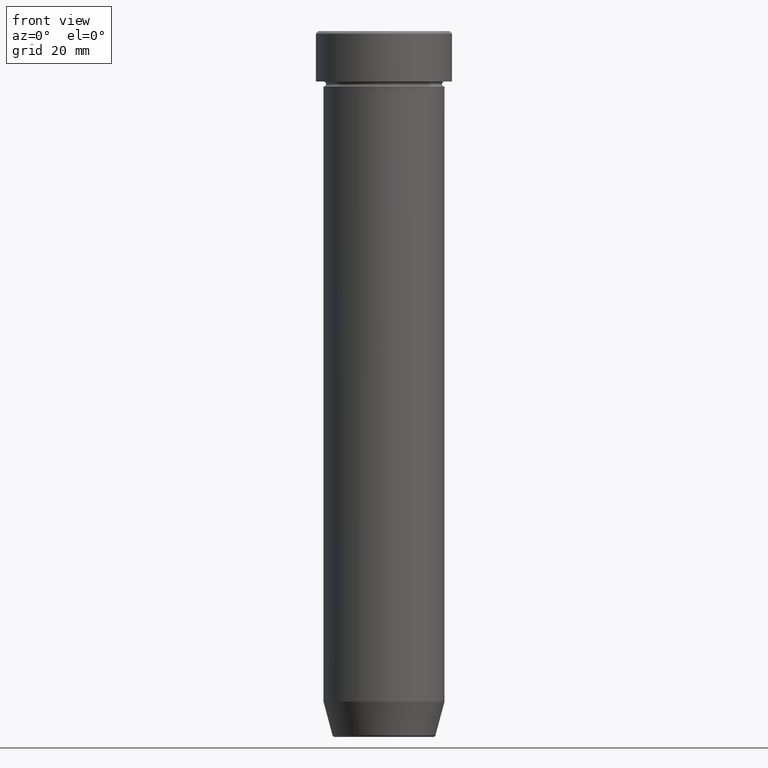
[diagram: clean part render]
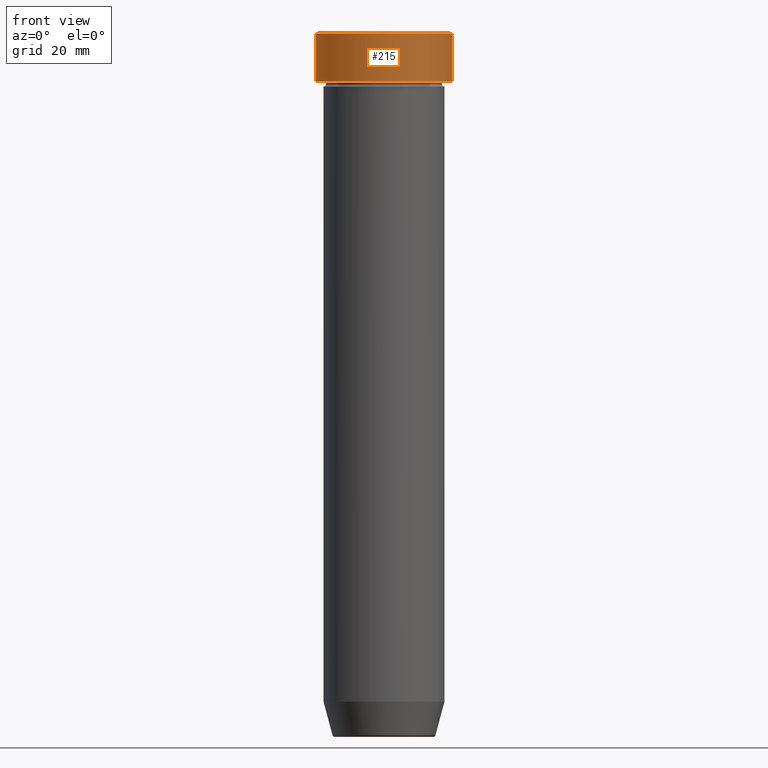
[diagram: same view with one face highlighted and labeled with its STEP entity id]
A machine part, front view. The second image highlights one B-rep face of the part: STEP entity #215.
In plain terms, the highlighted cylindrical surface (partial cylindrical patch) has radius 13.5 mm, axis along (-0, -0, 1).
Its self-contained STEP definition (entity closure, byte-faithful):
#16 = CIRCLE ( 'NONE', #142, 13.50000000000000000 ) ;
#23 = EDGE_CURVE ( 'NONE', #424, #444, #357, .T. ) ;
#72 = AXIS2_PLACEMENT_3D ( 'NONE', #131, #133, #75 ) ;
#75 = DIRECTION ( 'NONE',  ( 1.000000000000000000, 0.000000000000000000, 0.000000000000000000 ) ) ;
#95 = CARTESIAN_POINT ( 'NONE',  ( -13.50000000000000000, 1.653273178848926867E-15, -0.5000000000000091038 ) ) ;
#99 = LINE ( 'NONE', #188, #387 ) ;
#102 = ORIENTED_EDGE ( 'NONE', *, *, #319, .T. ) ;
#116 = AXIS2_PLACEMENT_3D ( 'NONE', #518, #140, #461 ) ;
#131 = CARTESIAN_POINT ( 'NONE',  ( 0.000000000000000000, 0.000000000000000000, -10.00000000000000000 ) ) ;
#133 = DIRECTION ( 'NONE',  ( -0.000000000000000000, -0.000000000000000000, 1.000000000000000000 ) ) ;
#140 = DIRECTION ( 'NONE',  ( -0.000000000000000000, -0.000000000000000000, 1.000000000000000000 ) ) ;
#142 = AXIS2_PLACEMENT_3D ( 'NONE', #479, #544, #358 ) ;
#159 = CARTESIAN_POINT ( 'NONE',  ( -13.50000000000000000, 1.653273178848926867E-15, -10.00000000000000000 ) ) ;
#167 = ORIENTED_EDGE ( 'NONE', *, *, #469, .T. ) ;
#188 = CARTESIAN_POINT ( 'NONE',  ( 13.50000000000000000, 0.000000000000000000, 0.000000000000000000 ) ) ;
#215 = ADVANCED_FACE ( 'NONE', ( #334 ), #230, .T. ) ;
#230 = CYLINDRICAL_SURFACE ( 'NONE', #116, 13.50000000000000000 ) ;
#243 = VECTOR ( 'NONE', #312, 1000.000000000000000 ) ;
#263 = EDGE_CURVE ( 'NONE', #562, #444, #16, .T. ) ;
#274 = EDGE_LOOP ( 'NONE', ( #418, #102, #167, #502 ) ) ;
#309 = CIRCLE ( 'NONE', #72, 13.50000000000000000 ) ;
#312 = DIRECTION ( 'NONE',  ( -0.000000000000000000, -0.000000000000000000, 1.000000000000000000 ) ) ;
#319 = EDGE_CURVE ( 'NONE', #424, #580, #309, .T. ) ;
#323 = DIRECTION ( 'NONE',  ( -0.000000000000000000, -0.000000000000000000, 1.000000000000000000 ) ) ;
#334 = FACE_OUTER_BOUND ( 'NONE', #274, .T. ) ;
#357 = LINE ( 'NONE', #585, #243 ) ;
#358 = DIRECTION ( 'NONE',  ( 1.000000000000000000, 0.000000000000000000, 0.000000000000000000 ) ) ;
#373 = CARTESIAN_POINT ( 'NONE',  ( 13.50000000000000000, 0.000000000000000000, -0.5000000000000091038 ) ) ;
#387 = VECTOR ( 'NONE', #323, 1000.000000000000000 ) ;
#418 = ORIENTED_EDGE ( 'NONE', *, *, #23, .F. ) ;
#424 = VERTEX_POINT ( 'NONE', #159 ) ;
#444 = VERTEX_POINT ( 'NONE', #95 ) ;
#461 = DIRECTION ( 'NONE',  ( 1.000000000000000000, 0.000000000000000000, 0.000000000000000000 ) ) ;
#469 = EDGE_CURVE ( 'NONE', #580, #562, #99, .T. ) ;
#479 = CARTESIAN_POINT ( 'NONE',  ( 0.000000000000000000, 0.000000000000000000, -0.5000000000000091038 ) ) ;
#502 = ORIENTED_EDGE ( 'NONE', *, *, #263, .T. ) ;
#518 = CARTESIAN_POINT ( 'NONE',  ( 0.000000000000000000, 0.000000000000000000, 0.000000000000000000 ) ) ;
#544 = DIRECTION ( 'NONE',  ( 0.000000000000000000, 0.000000000000000000, -1.000000000000000000 ) ) ;
#562 = VERTEX_POINT ( 'NONE', #373 ) ;
#580 = VERTEX_POINT ( 'NONE', #583 ) ;
#583 = CARTESIAN_POINT ( 'NONE',  ( 13.50000000000000000, 0.000000000000000000, -10.00000000000000000 ) ) ;
#585 = CARTESIAN_POINT ( 'NONE',  ( -13.50000000000000000, 1.653273178848926867E-15, 0.000000000000000000 ) ) ;